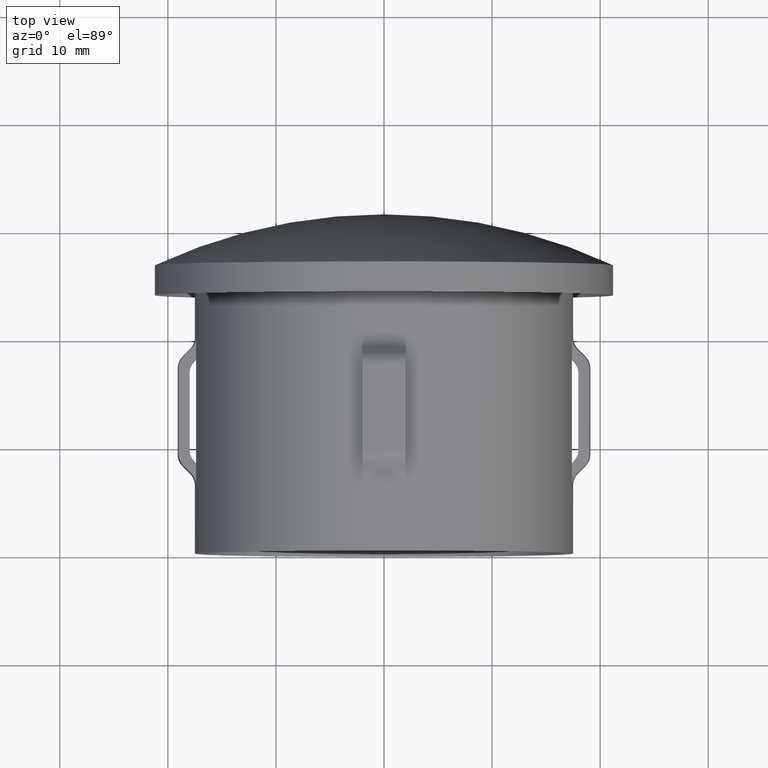
[diagram: clean part render]
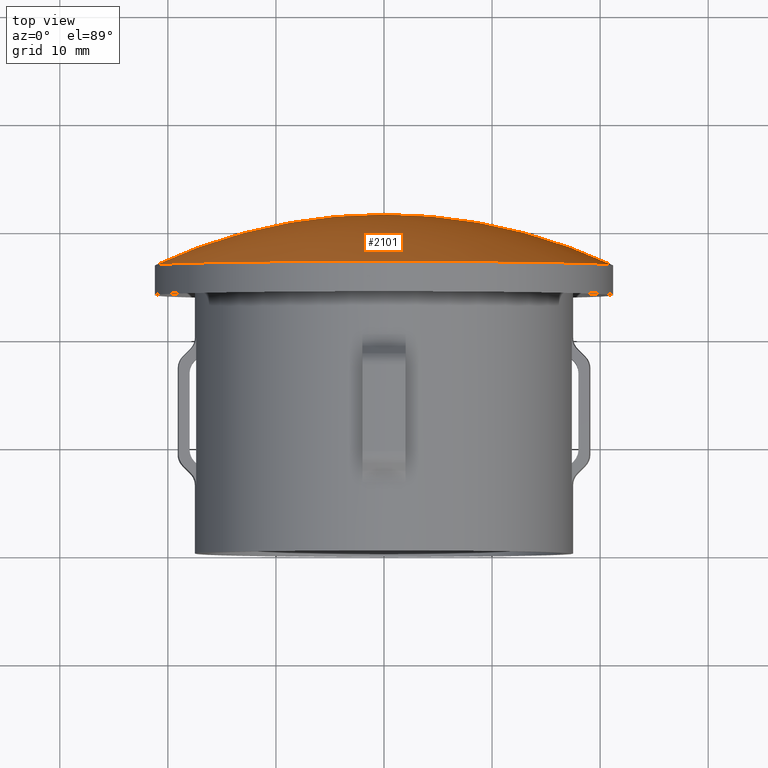
[diagram: same view with one face highlighted and labeled with its STEP entity id]
A machine part, top view. The second image highlights one B-rep face of the part: STEP entity #2101.
In plain terms, the highlighted spherical surface has radius 50 mm.
Its self-contained STEP definition (entity closure, byte-faithful):
#64 = CARTESIAN_POINT ( 'NONE',  ( 21.20000000000000300, 26.68310943387169200, 0.0000000000000000000 ) ) ;
#789 = ORIENTED_EDGE ( 'NONE', *, *, #2418, .F. ) ;
#891 = ORIENTED_EDGE ( 'NONE', *, *, #4858, .F. ) ;
#987 = CIRCLE ( 'NONE', #6827, 21.20000000000001000 ) ;
#1008 = ORIENTED_EDGE ( 'NONE', *, *, #3643, .T. ) ;
#1184 = DIRECTION ( 'NONE',  ( -1.000000000000000000, 0.0000000000000000000, 0.0000000000000000000 ) ) ;
#1237 = DIRECTION ( 'NONE',  ( 0.0000000000000000000, 0.0000000000000000000, -1.000000000000000000 ) ) ;
#1773 = DIRECTION ( 'NONE',  ( 1.000000000000000000, -2.914335439641035900E-015, 0.0000000000000000000 ) ) ;
#2101 = ADVANCED_FACE ( 'NONE', ( #10441 ), #12892, .T. ) ;
#2418 = EDGE_CURVE ( 'NONE', #10585, #4975, #13213, .T. ) ;
#3363 = DIRECTION ( 'NONE',  ( 1.224646799147353200E-016, -3.557430204473923300E-031, 1.000000000000000000 ) ) ;
#3643 = EDGE_CURVE ( 'NONE', #10585, #12594, #4621, .T. ) ;
#4621 = CIRCLE ( 'NONE', #6562, 50.00000000000000000 ) ;
#4858 = EDGE_CURVE ( 'NONE', #4975, #12594, #987, .T. ) ;
#4975 = VERTEX_POINT ( 'NONE', #64 ) ;
#5369 = CARTESIAN_POINT ( 'NONE',  ( -21.19999999999988600, 26.68310943387181300, 2.596251214192390300E-015 ) ) ;
#5416 = CARTESIAN_POINT ( 'NONE',  ( 1.441041888556689300E-013, 31.39999999999999900, 0.0000000000000000000 ) ) ;
#5436 = DIRECTION ( 'NONE',  ( 1.000000000000000000, 0.0000000000000000000, -1.224646799147353200E-016 ) ) ;
#6562 = AXIS2_PLACEMENT_3D ( 'NONE', #10607, #3363, #5436 ) ;
#6827 = AXIS2_PLACEMENT_3D ( 'NONE', #9562, #11745, #7531 ) ;
#7531 = DIRECTION ( 'NONE',  ( 1.000000000000000000, -2.945756845998350200E-015, 0.0000000000000000000 ) ) ;
#9135 = DIRECTION ( 'NONE',  ( -0.0000000000000000000, 0.0000000000000000000, 1.000000000000000000 ) ) ;
#9314 = CARTESIAN_POINT ( 'NONE',  ( -4.200538521075421400E-015, -18.60000000000000500, 0.0000000000000000000 ) ) ;
#9562 = CARTESIAN_POINT ( 'NONE',  ( -6.439761623881060800E-015, 26.68310943387175600, 0.0000000000000000000 ) ) ;
#9716 = CARTESIAN_POINT ( 'NONE',  ( -4.200538521075421400E-015, -18.60000000000000500, 0.0000000000000000000 ) ) ;
#10441 = FACE_OUTER_BOUND ( 'NONE', #13393, .T. ) ;
#10585 = VERTEX_POINT ( 'NONE', #5416 ) ;
#10607 = CARTESIAN_POINT ( 'NONE',  ( -4.200538521075421400E-015, -18.60000000000000500, 0.0000000000000000000 ) ) ;
#10879 = AXIS2_PLACEMENT_3D ( 'NONE', #9314, #9135, #1773 ) ;
#11297 = AXIS2_PLACEMENT_3D ( 'NONE', #9716, #1237, #1184 ) ;
#11745 = DIRECTION ( 'NONE',  ( -2.904862207577519400E-015, -1.000000000000000000, -0.0000000000000000000 ) ) ;
#12594 = VERTEX_POINT ( 'NONE', #5369 ) ;
#12892 = SPHERICAL_SURFACE ( 'NONE', #10879, 50.00000000000000000 ) ;
#13213 = CIRCLE ( 'NONE', #11297, 50.00000000000000000 ) ;
#13393 = EDGE_LOOP ( 'NONE', ( #789, #1008, #891 ) ) ;